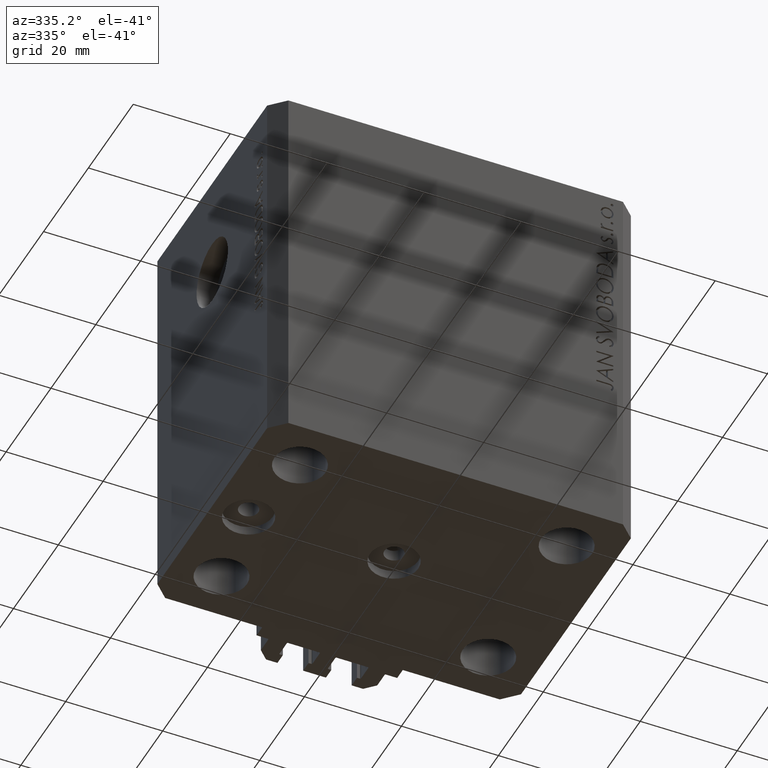
[diagram: clean part render]
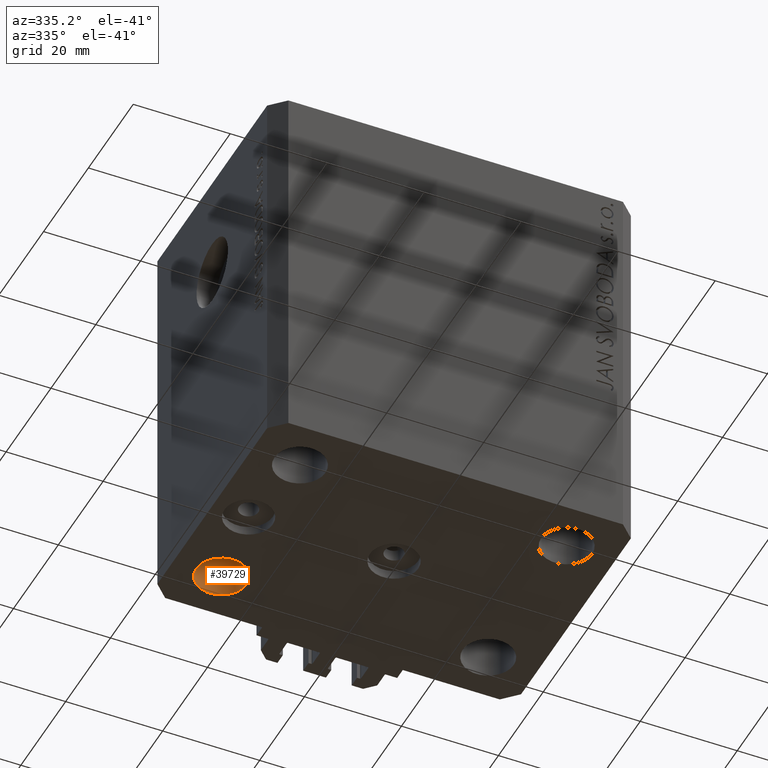
[diagram: same view with one face highlighted and labeled with its STEP entity id]
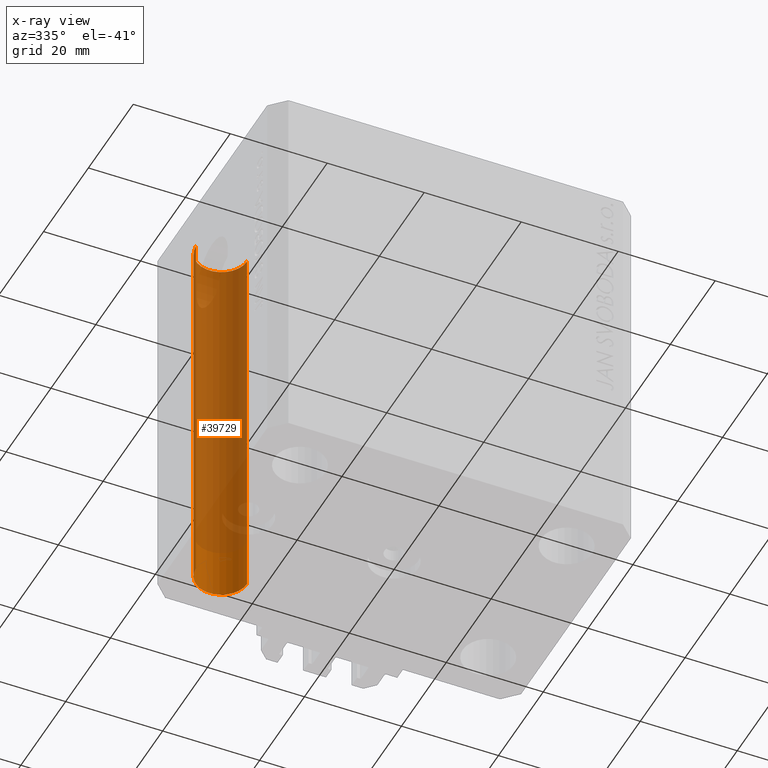
[diagram: x-ray of the same camera — body ghosted, the highlighted face saturated]
A machine part, auxiliary view. The second image highlights one B-rep face of the part: STEP entity #39729.
The next image is the same camera in x-ray: the body ghosted, the highlighted face saturated — about 86% of this face is hidden behind the body in this view.
In plain terms, the highlighted cylindrical surface (edge-blend (fillet) strip) has radius 5.25 mm, axis along (0, 0, 1).
Its self-contained STEP definition (entity closure, byte-faithful):
#963 = CARTESIAN_POINT ( 'NONE',  ( -22.25000000000000000, 17.49999999999999645, -80.00000000000000000 ) ) ;
#980 = CARTESIAN_POINT ( 'NONE',  ( -27.50000000000000000, 17.49999999999999645, -94.84924240491750425 ) ) ;
#1455 = CYLINDRICAL_SURFACE ( 'NONE', #33721, 5.250000000000000888 ) ;
#2267 = VECTOR ( 'NONE', #8280, 1000.000000000000000 ) ;
#2359 = CARTESIAN_POINT ( 'NONE',  ( -22.25000000000000000, 17.49999999999999645, 0.000000000000000000 ) ) ;
#2808 = CARTESIAN_POINT ( 'NONE',  ( -32.75000000000000000, 17.49999999999999645, 0.000000000000000000 ) ) ;
#2837 = LINE ( 'NONE', #8758, #2267 ) ;
#3147 = VECTOR ( 'NONE', #10024, 1000.000000000000000 ) ;
#3815 = AXIS2_PLACEMENT_3D ( 'NONE', #40342, #39634, #24756 ) ;
#4819 = DIRECTION ( 'NONE',  ( 1.000000000000000000, 0.000000000000000000, 0.000000000000000000 ) ) ;
#8280 = DIRECTION ( 'NONE',  ( -0.000000000000000000, -0.000000000000000000, 1.000000000000000000 ) ) ;
#8758 = CARTESIAN_POINT ( 'NONE',  ( -22.25000000000000000, 17.49999999999999645, -94.84924240491750425 ) ) ;
#10024 = DIRECTION ( 'NONE',  ( -0.000000000000000000, -0.000000000000000000, 1.000000000000000000 ) ) ;
#10799 = CARTESIAN_POINT ( 'NONE',  ( -27.50000000000000000, 17.49999999999999645, 0.000000000000000000 ) ) ;
#12233 = VERTEX_POINT ( 'NONE', #2808 ) ;
#15217 = ORIENTED_EDGE ( 'NONE', *, *, #33956, .T. ) ;
#16975 = LINE ( 'NONE', #42907, #3147 ) ;
#17598 = EDGE_LOOP ( 'NONE', ( #36896, #17905, #20733, #15217 ) ) ;
#17905 = ORIENTED_EDGE ( 'NONE', *, *, #23248, .T. ) ;
#20733 = ORIENTED_EDGE ( 'NONE', *, *, #38211, .T. ) ;
#21713 = CARTESIAN_POINT ( 'NONE',  ( -32.75000000000000000, 17.49999999999999645, -80.00000000000000000 ) ) ;
#23248 = EDGE_CURVE ( 'NONE', #41657, #25003, #38237, .T. ) ;
#24756 = DIRECTION ( 'NONE',  ( 1.000000000000000000, 0.000000000000000000, 0.000000000000000000 ) ) ;
#25003 = VERTEX_POINT ( 'NONE', #963 ) ;
#30734 = FACE_OUTER_BOUND ( 'NONE', #17598, .T. ) ;
#30860 = CIRCLE ( 'NONE', #39282, 5.250000000000000888 ) ;
#33273 = VERTEX_POINT ( 'NONE', #2359 ) ;
#33721 = AXIS2_PLACEMENT_3D ( 'NONE', #980, #45390, #4819 ) ;
#33956 = EDGE_CURVE ( 'NONE', #33273, #12233, #30860, .T. ) ;
#36896 = ORIENTED_EDGE ( 'NONE', *, *, #43266, .F. ) ;
#38211 = EDGE_CURVE ( 'NONE', #25003, #33273, #2837, .T. ) ;
#38237 = CIRCLE ( 'NONE', #3815, 5.250000000000000888 ) ;
#39282 = AXIS2_PLACEMENT_3D ( 'NONE', #10799, #47289, #46820 ) ;
#39634 = DIRECTION ( 'NONE',  ( -0.000000000000000000, -0.000000000000000000, -1.000000000000000000 ) ) ;
#39729 = ADVANCED_FACE ( 'NONE', ( #30734 ), #1455, .F. ) ;
#40342 = CARTESIAN_POINT ( 'NONE',  ( -27.50000000000000000, 17.49999999999999645, -80.00000000000000000 ) ) ;
#41657 = VERTEX_POINT ( 'NONE', #21713 ) ;
#42907 = CARTESIAN_POINT ( 'NONE',  ( -32.75000000000000000, 17.49999999999999645, -94.84924240491750425 ) ) ;
#43266 = EDGE_CURVE ( 'NONE', #41657, #12233, #16975, .T. ) ;
#45390 = DIRECTION ( 'NONE',  ( -0.000000000000000000, -0.000000000000000000, 1.000000000000000000 ) ) ;
#46820 = DIRECTION ( 'NONE',  ( 1.000000000000000000, 0.000000000000000000, 0.000000000000000000 ) ) ;
#47289 = DIRECTION ( 'NONE',  ( 0.000000000000000000, 0.000000000000000000, 1.000000000000000000 ) ) ;